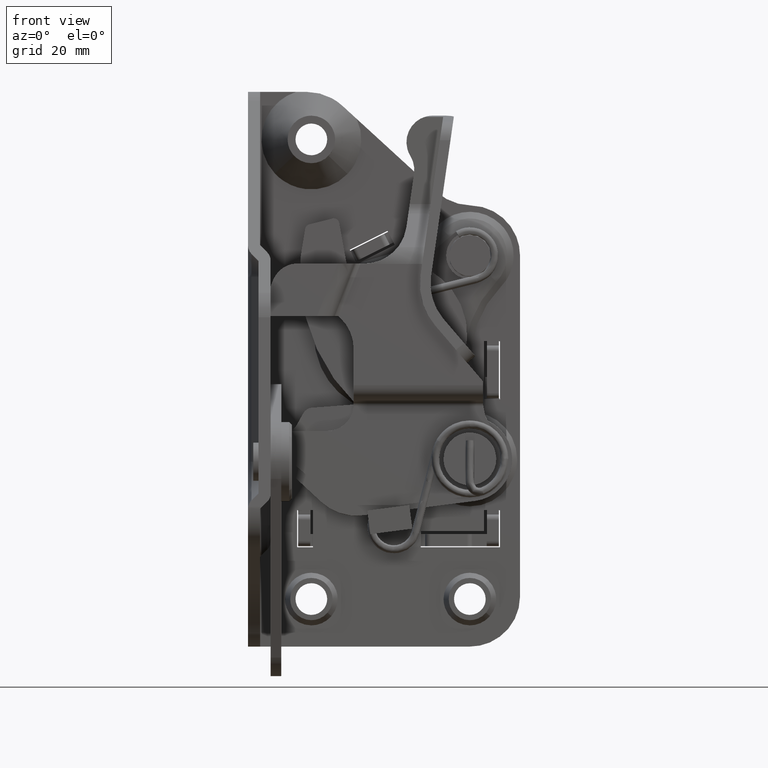
[diagram: clean part render]
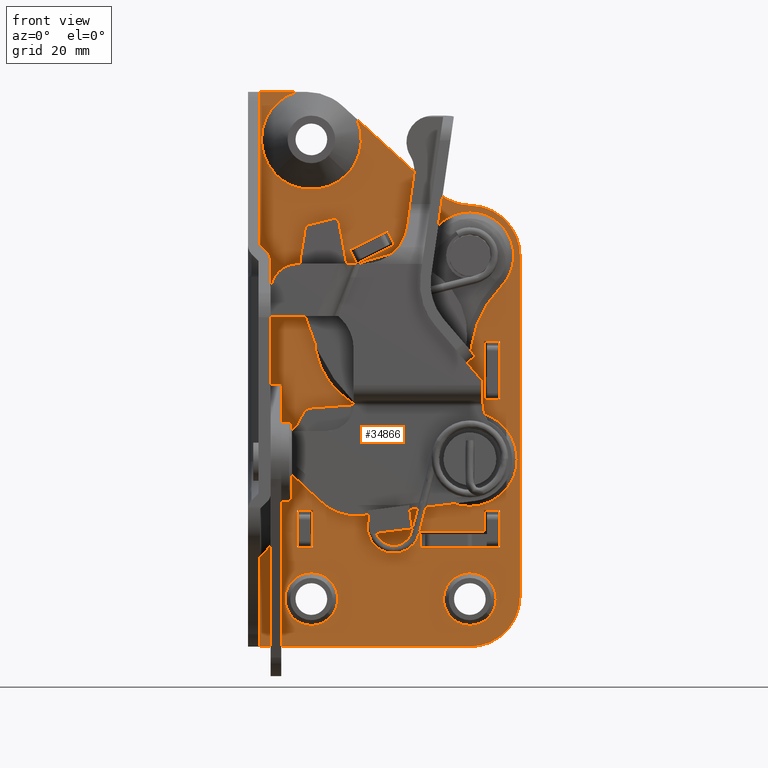
[diagram: same view with one face highlighted and labeled with its STEP entity id]
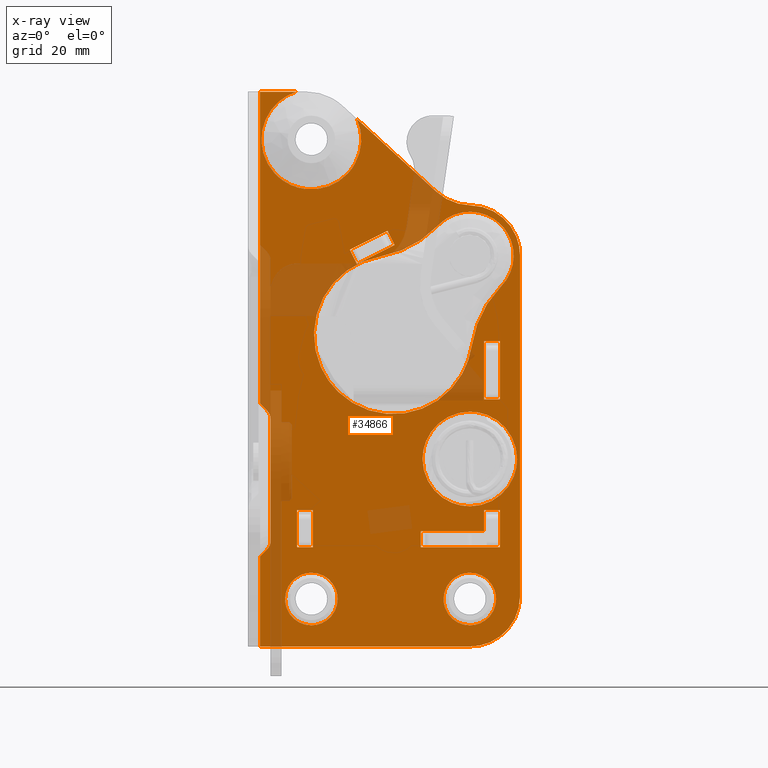
[diagram: x-ray of the same camera — body ghosted, the highlighted face saturated]
A machine part, front view. The second image highlights one B-rep face of the part: STEP entity #34866.
The next image is the same camera in x-ray: the body ghosted, the highlighted face saturated — about 15% of this face is hidden behind the body in this view.
In plain terms, the highlighted face is a freeform B-spline surface patch.
Its self-contained STEP definition (entity closure, byte-faithful):
#25996=CARTESIAN_POINT('',(15.429034903423171,32.699999854749322,-22.386551169877979));
#25997=VERTEX_POINT('',#25996);
#26003=CARTESIAN_POINT('',(12.0,32.700000000000003,-21.018504542377659));
#26004=VERTEX_POINT('',#26003);
#26005=CARTESIAN_POINT('',(12.0,32.700000000000003,-21.018504542377659));
#26006=CARTESIAN_POINT('',(12.531868200378380,32.699999977470547,-21.018226501865250));
#26007=CARTESIAN_POINT('',(13.496941514309810,32.699999936590977,-21.174551846275449));
#26008=CARTESIAN_POINT('',(14.641317711000600,32.699999888116402,-21.728556728464500));
#26009=CARTESIAN_POINT('',(15.214714494438910,32.699999863827443,-22.183162072066541));
#26010=CARTESIAN_POINT('',(15.429034903423171,32.699999854749322,-22.386551169877979));
#26011=B_SPLINE_CURVE_WITH_KNOTS('',3,(#26005,#26006,#26007,#26008,#26009,#26010),.UNSPECIFIED.,.F.,.U.,(4,1,1,4),(0.000000033460234,1.595559757880193,2.895643604082581,3.782064153191778),.UNSPECIFIED.);
#26012=EDGE_CURVE('',#26004,#25997,#26011,.T.);
#26014=CARTESIAN_POINT('',(7.018504542377841,32.700000000000003,-25.999998656390400));
#26015=VERTEX_POINT('',#26014);
#26016=CARTESIAN_POINT('',(7.018504542377841,32.700000000000003,-25.999998656390400));
#26017=CARTESIAN_POINT('',(7.018488238826967,32.700000000000003,-25.694341628645510));
#26018=CARTESIAN_POINT('',(7.082424721107380,32.700000000000067,-25.001506832384042));
#26019=CARTESIAN_POINT('',(7.422560476180739,32.699999999999982,-23.904086725285179));
#26020=CARTESIAN_POINT('',(7.994318873139673,32.700000000000053,-22.976261939324498));
#26021=CARTESIAN_POINT('',(8.727020034198741,32.699999999999918,-22.206779831102459));
#26022=CARTESIAN_POINT('',(9.474724150318567,32.700000000000088,-21.666343925716181));
#26023=CARTESIAN_POINT('',(10.594155668960751,32.699999999999903,-21.161776135503569));
#26024=CARTESIAN_POINT('',(11.449764652656640,32.700000000000152,-21.018186359229141));
#26025=CARTESIAN_POINT('',(12.0,32.700000000000003,-21.018504542377659));
#26026=B_SPLINE_CURVE_WITH_KNOTS('',3,(#26016,#26017,#26018,#26019,#26020,#26021,#26022,#26023,#26024,#26025),.UNSPECIFIED.,.F.,.U.,(4,1,1,1,1,1,1,4),(0.000000144386207,0.916982091844515,2.078509201685229,3.423423737743134,4.156969202309650,5.257381164308493,6.174393033261874,7.824963107522581),.UNSPECIFIED.);
#26027=EDGE_CURVE('',#26015,#26004,#26026,.T.);
#26029=CARTESIAN_POINT('',(12.0,32.700000000000003,-30.981495457622341));
#26030=VERTEX_POINT('',#26029);
#26031=CARTESIAN_POINT('',(12.0,32.700000000000003,-30.981495457622341));
#26032=CARTESIAN_POINT('',(11.592443745591300,32.700000000000067,-30.981606309677900));
#26033=CARTESIAN_POINT('',(10.899668974955111,32.699999999999953,-30.895964743958089));
#26034=CARTESIAN_POINT('',(9.913296311072282,32.700000000000152,-30.556659653651440));
#26035=CARTESIAN_POINT('',(9.149426467699504,32.699999999999633,-30.117700919773569));
#26036=CARTESIAN_POINT('',(8.477186896980749,32.700000000000230,-29.551982123733890));
#26037=CARTESIAN_POINT('',(7.809034445144345,32.700000000000387,-28.777771941976511));
#26038=CARTESIAN_POINT('',(7.192406337174747,32.699999999999321,-27.589255538282401));
#26039=CARTESIAN_POINT('',(7.018216567550966,32.700000000000330,-26.550220100280210));
#26040=CARTESIAN_POINT('',(7.018504542377841,32.700000000000003,-25.999998656390400));
#26041=B_SPLINE_CURVE_WITH_KNOTS('',3,(#26031,#26032,#26033,#26034,#26035,#26036,#26037,#26038,#26039,#26040),.UNSPECIFIED.,.F.,.U.,(4,1,1,1,1,1,1,4),(0.000000143924558,1.222643813807443,2.078509603566498,3.117766867627621,3.851392941928405,4.707202872080243,6.174394228759630,7.824964622093184),.UNSPECIFIED.);
#26042=EDGE_CURVE('',#26030,#26015,#26041,.T.);
#26044=CARTESIAN_POINT('',(15.803649283100130,32.700000143431133,-29.216761298365270));
#26045=VERTEX_POINT('',#26044);
#26046=CARTESIAN_POINT('',(15.803649283100130,32.700000143431133,-29.216761298365270));
#26047=CARTESIAN_POINT('',(15.585348074208760,32.700000135199303,-29.474970245520609));
#26048=CARTESIAN_POINT('',(15.112174348798440,32.700000117356353,-29.930891957360561));
#26049=CARTESIAN_POINT('',(14.178225716264910,32.700000082138402,-30.529937292278529));
#26050=CARTESIAN_POINT('',(13.127082348119879,32.700000042500832,-30.900961097796870));
#26051=CARTESIAN_POINT('',(12.338115369381461,32.700000012750031,-30.981524092186390));
#26052=CARTESIAN_POINT('',(12.0,32.700000000000003,-30.981495457622341));
#26053=B_SPLINE_CURVE_WITH_KNOTS('',3,(#26046,#26047,#26048,#26049,#26050,#26051,#26052),.UNSPECIFIED.,.F.,.U.,(4,1,1,1,4),(0.000000044486663,1.014366487465255,1.961116253166192,3.313599214421998,4.327964746575330),.UNSPECIFIED.);
#26054=EDGE_CURVE('',#26045,#26030,#26053,.T.);
#26090=CARTESIAN_POINT('',(16.981495457622160,32.700000000000003,-26.000001343609540));
#26091=VERTEX_POINT('',#26090);
#26092=CARTESIAN_POINT('',(16.981495457622160,32.700000000000003,-26.000001343609540));
#26093=CARTESIAN_POINT('',(16.981634943578140,32.700000019491540,-26.437140950218989));
#26094=CARTESIAN_POINT('',(16.884953551952329,32.700000051972417,-27.165599492583329));
#26095=CARTESIAN_POINT('',(16.482601921043280,32.700000100967642,-28.264421708479642));
#26096=CARTESIAN_POINT('',(16.086033134646382,32.700000128552098,-28.883066385325719));
#26097=CARTESIAN_POINT('',(15.803649283100130,32.700000143431133,-29.216761298365270));
#26098=B_SPLINE_CURVE_WITH_KNOTS('',3,(#26092,#26093,#26094,#26095,#26096,#26097),.UNSPECIFIED.,.F.,.U.,(4,1,1,4),(0.000000028833962,1.311383558238460,2.185616231079242,3.496999760524615),.UNSPECIFIED.);
#26099=EDGE_CURVE('',#26091,#26045,#26098,.T.);
#26101=CARTESIAN_POINT('',(15.429034903423171,32.699999854749322,-22.386551169877979));
#26102=CARTESIAN_POINT('',(15.857135849316199,32.699999871050977,-22.792091786495419));
#26103=CARTESIAN_POINT('',(16.350597712833409,32.699999898081280,-23.464535872119342));
#26104=CARTESIAN_POINT('',(16.860166133028191,32.699999948375130,-24.715710873949551));
#26105=CARTESIAN_POINT('',(16.981802170695669,32.699999978837383,-25.473532541181470));
#26106=CARTESIAN_POINT('',(16.981495457622160,32.700000000000003,-26.000001343609540));
#26107=B_SPLINE_CURVE_WITH_KNOTS('',3,(#26101,#26102,#26103,#26104,#26105,#26106),.UNSPECIFIED.,.F.,.U.,(4,1,1,4),(0.000000041198786,1.768788659043473,2.463628968249215,4.042900889504093),.UNSPECIFIED.);
#26108=EDGE_CURVE('',#25997,#26091,#26107,.T.);
#26203=CARTESIAN_POINT('',(45.429034903423172,32.699999854749322,-22.386551169877979));
#26204=VERTEX_POINT('',#26203);
#26210=CARTESIAN_POINT('',(42.0,32.700000000000003,-21.018504542377659));
#26211=VERTEX_POINT('',#26210);
#26212=CARTESIAN_POINT('',(42.0,32.700000000000003,-21.018504542377659));
#26213=CARTESIAN_POINT('',(42.393969026391517,32.699999983311898,-21.018420827854928));
#26214=CARTESIAN_POINT('',(43.201563784377967,32.699999949102818,-21.114779412106920));
#26215=CARTESIAN_POINT('',(44.389801199788579,32.699999898770372,-21.564460941101800));
#26216=CARTESIAN_POINT('',(45.100493498773467,32.699999868665977,-22.074561326348849));
#26217=CARTESIAN_POINT('',(45.429034903423172,32.699999854749322,-22.386551169877979));
#26218=B_SPLINE_CURVE_WITH_KNOTS('',3,(#26212,#26213,#26214,#26215,#26216,#26217),.UNSPECIFIED.,.F.,.U.,(4,1,1,4),(0.000000033461454,1.181897523065669,2.422875581161471,3.782064153191772),.UNSPECIFIED.);
#26219=EDGE_CURVE('',#26211,#26204,#26218,.T.);
#26221=CARTESIAN_POINT('',(37.018504542377840,32.700000000000003,-25.999998656390410));
#26222=VERTEX_POINT('',#26221);
#26223=CARTESIAN_POINT('',(37.018504542377840,32.700000000000003,-25.999998656390410));
#26224=CARTESIAN_POINT('',(37.018476213409102,32.699999999999932,-25.694338489091489));
#26225=CARTESIAN_POINT('',(37.074937467437081,32.700000000000088,-25.083025790382170));
#26226=CARTESIAN_POINT('',(37.314835661557112,32.699999999999847,-24.236418965762319));
#26227=CARTESIAN_POINT('',(37.766247873295711,32.700000000000571,-23.296647497732621));
#26228=CARTESIAN_POINT('',(38.493576935050093,32.699999999999022,-22.376202572785012));
#26229=CARTESIAN_POINT('',(39.455227351820668,32.700000000001303,-21.672320073652919));
#26230=CARTESIAN_POINT('',(40.614557088953461,32.699999999999022,-21.158383935338250));
#26231=CARTESIAN_POINT('',(41.449757515957138,32.700000000001012,-21.018183295373319));
#26232=CARTESIAN_POINT('',(42.0,32.700000000000003,-21.018504542377659));
#26233=B_SPLINE_CURVE_WITH_KNOTS('',3,(#26223,#26224,#26225,#26226,#26227,#26228,#26229,#26230,#26231,#26232),.UNSPECIFIED.,.F.,.U.,(4,1,1,1,1,1,1,4),(0.000000144403209,0.916982091859441,1.833974683069288,2.628702697766083,4.034713282469124,5.318525424955242,6.174393033264511,7.824963107522503),.UNSPECIFIED.);
#26234=EDGE_CURVE('',#26222,#26211,#26233,.T.);
#26236=CARTESIAN_POINT('',(42.0,32.700000000000003,-30.981495457622341));
#26237=VERTEX_POINT('',#26236);
#26238=CARTESIAN_POINT('',(42.0,32.700000000000003,-30.981495457622341));
#26239=CARTESIAN_POINT('',(41.592446424894661,32.700000000000010,-30.981594856541900));
#26240=CARTESIAN_POINT('',(40.797770427022179,32.700000000000017,-30.883428481427959));
#26241=CARTESIAN_POINT('',(39.665726530846747,32.699999999999953,-30.454802956132529));
#26242=CARTESIAN_POINT('',(38.717691583674863,32.700000000000088,-29.804301538391421));
#26243=CARTESIAN_POINT('',(37.941963822458249,32.699999999999832,-28.958907514227409));
#26244=CARTESIAN_POINT('',(37.420662545201047,32.699999999999690,-28.051695237446559));
#26245=CARTESIAN_POINT('',(37.093122463505892,32.700000000000053,-27.039216258252718));
#26246=CARTESIAN_POINT('',(37.018436500581082,32.700000000000387,-26.366795433644359));
#26247=CARTESIAN_POINT('',(37.018504542377840,32.700000000000003,-25.999998656390410));
#26248=B_SPLINE_CURVE_WITH_KNOTS('',3,(#26238,#26239,#26240,#26241,#26242,#26243,#26244,#26245,#26246,#26247),.UNSPECIFIED.,.F.,.U.,(4,1,1,1,1,1,1,4),(0.000000143929471,1.222643813810981,2.384179565234768,3.606837637507370,4.646042647746825,5.807590104224497,6.724583924890236,7.824964622093123),.UNSPECIFIED.);
#26249=EDGE_CURVE('',#26237,#26222,#26248,.T.);
#26251=CARTESIAN_POINT('',(45.803649283100142,32.700000143431133,-29.216761298365281));
#26252=VERTEX_POINT('',#26251);
#26253=CARTESIAN_POINT('',(45.803649283100142,32.700000143431133,-29.216761298365281));
#26254=CARTESIAN_POINT('',(45.527174750830433,32.700000133005553,-29.543875179315769));
#26255=CARTESIAN_POINT('',(45.040214293423617,32.700000114643082,-29.988076451306899));
#26256=CARTESIAN_POINT('',(44.131072617235610,32.700000080360176,-30.536815473335331));
#26257=CARTESIAN_POINT('',(43.172135904133867,32.700000044199832,-30.890056757297032));
#26258=CARTESIAN_POINT('',(42.383204625788409,32.700000014450232,-30.981555635469959));
#26259=CARTESIAN_POINT('',(42.0,32.700000000000003,-30.981495457622341));
#26260=B_SPLINE_CURVE_WITH_KNOTS('',3,(#26253,#26254,#26255,#26256,#26257,#26258,#26259),.UNSPECIFIED.,.F.,.U.,(4,1,1,1,4),(0.000000044488363,1.284865575487596,1.961116253166174,3.178347949920271,4.327964746575360),.UNSPECIFIED.);
#26261=EDGE_CURVE('',#26252,#26237,#26260,.T.);
#26297=CARTESIAN_POINT('',(46.981495457622167,32.700000000000003,-26.000001343609551));
#26298=VERTEX_POINT('',#26297);
#26299=CARTESIAN_POINT('',(46.981495457622167,32.700000000000003,-26.000001343609551));
#26300=CARTESIAN_POINT('',(46.981894596361357,32.700000025178490,-26.564682709331560));
#26301=CARTESIAN_POINT('',(46.781018837506053,32.700000077138633,-27.730008290981921));
#26302=CARTESIAN_POINT('',(46.192210423541070,32.700000122981109,-28.758123550116409));
#26303=CARTESIAN_POINT('',(45.803649283100142,32.700000143431133,-29.216761298365281));
#26304=B_SPLINE_CURVE_WITH_KNOTS('',3,(#26299,#26300,#26301,#26302,#26303),.UNSPECIFIED.,.F.,.U.,(4,1,4),(0.000000028832948,1.693880946622130,3.496999760524598),.UNSPECIFIED.);
#26305=EDGE_CURVE('',#26298,#26252,#26304,.T.);
#26307=CARTESIAN_POINT('',(45.429034903423172,32.699999854749322,-22.386551169877979));
#26308=CARTESIAN_POINT('',(45.658158651021637,32.699999863488131,-22.603949997329821));
#26309=CARTESIAN_POINT('',(46.116573919183892,32.699999884647582,-23.130338642821819));
#26310=CARTESIAN_POINT('',(46.621066014928147,32.699999921135962,-24.038077437150498));
#26311=CARTESIAN_POINT('',(46.919221518876888,32.699999961064997,-25.031395621273941));
#26312=CARTESIAN_POINT('',(46.981526232639318,32.699999987303457,-25.684151727342151));
#26313=CARTESIAN_POINT('',(46.981495457622167,32.700000000000003,-26.000001343609551));
#26314=B_SPLINE_CURVE_WITH_KNOTS('',3,(#26307,#26308,#26309,#26310,#26311,#26312,#26313),.UNSPECIFIED.,.F.,.U.,(4,1,1,1,4),(0.000000041200703,0.947553584764326,2.084598001305798,3.095347345905858,4.042900889504078),.UNSPECIFIED.);
#26315=EDGE_CURVE('',#26204,#26298,#26314,.T.);
#27202=CARTESIAN_POINT('',(18.834457562540472,32.700000000000010,54.469769056922473));
#27203=VERTEX_POINT('',#27202);
#27209=CARTESIAN_POINT('',(20.641382222506650,32.700000000000003,64.831480083288810));
#27210=VERTEX_POINT('',#27209);
#27211=CARTESIAN_POINT('',(20.641382222506650,32.700000000000003,64.831480083288810));
#27212=CARTESIAN_POINT('',(20.853341715756621,32.699999999999982,64.353528864449274));
#27213=CARTESIAN_POINT('',(21.188074288179120,32.700000000000081,63.389867109257331));
#27214=CARTESIAN_POINT('',(21.443956639134871,32.699999999999847,61.926111623434700));
#27215=CARTESIAN_POINT('',(21.471376132832312,32.700000000000031,60.615714096947222));
#27216=CARTESIAN_POINT('',(21.333219980892061,32.700000000000067,59.343183419953121));
#27217=CARTESIAN_POINT('',(20.963864023847059,32.700000000000060,57.814337333218432));
#27218=CARTESIAN_POINT('',(20.169770470909999,32.699999999999761,56.086471418203082));
#27219=CARTESIAN_POINT('',(19.296036095837810,32.700000000000273,54.952748261399847));
#27220=CARTESIAN_POINT('',(18.834457562540472,32.700000000000010,54.469769056922473));
#27221=B_SPLINE_CURVE_WITH_KNOTS('',3,(#27211,#27212,#27213,#27214,#27215,#27216,#27217,#27218,#27219,#27220),.UNSPECIFIED.,.F.,.U.,(4,1,1,1,1,1,1,4),(0.000000062585027,1.568525287780609,3.049936762960364,4.444204773696458,5.489916337419253,6.884118895823088,9.149815144178286,11.154047618153900),.UNSPECIFIED.);
#27222=EDGE_CURVE('',#27210,#27203,#27221,.T.);
#27268=CARTESIAN_POINT('',(9.109718639284489,32.700000000000003,70.0));
#27269=VERTEX_POINT('',#27268);
#27283=CARTESIAN_POINT('',(5.089579544775117,32.700000000000010,54.550208105984240));
#27284=VERTEX_POINT('',#27283);
#27285=CARTESIAN_POINT('',(5.089579544775117,32.700000000000010,54.550208105984240));
#27286=CARTESIAN_POINT('',(4.548976454937859,32.700000000000067,55.129107076215057));
#27287=CARTESIAN_POINT('',(3.746160756512051,32.699999999999861,56.241845526901962));
#27288=CARTESIAN_POINT('',(3.063905106337593,32.700000000000102,57.815129090466208));
#27289=CARTESIAN_POINT('',(2.688866451712741,32.699999999999982,59.203137922133983));
#27290=CARTESIAN_POINT('',(2.500930734279940,32.699999999999960,60.681413977813527));
#27291=CARTESIAN_POINT('',(2.603308777257159,32.700000000000109,62.568859347880867));
#27292=CARTESIAN_POINT('',(3.115702948588299,32.699999999999953,64.418322213607098));
#27293=CARTESIAN_POINT('',(3.876404320220501,32.699999999999953,65.898898029195081));
#27294=CARTESIAN_POINT('',(4.812562616874296,32.700000000000053,67.210824350313203));
#27295=CARTESIAN_POINT('',(5.960885799509279,32.700000000000102,68.351542299680816));
#27296=CARTESIAN_POINT('',(7.493038046563590,32.699999999999832,69.367709033761201));
#27297=CARTESIAN_POINT('',(8.544113207503402,32.700000000000223,69.818424082408669));
#27298=CARTESIAN_POINT('',(9.109718639284489,32.700000000000003,70.0));
#27299=B_SPLINE_CURVE_WITH_KNOTS('',3,(#27285,#27286,#27287,#27288,#27289,#27290,#27291,#27292,#27293,#27294,#27295,#27296,#27297,#27298),.UNSPECIFIED.,.F.,.U.,(4,1,1,1,1,1,1,1,1,1,1,4),(0.000000153265582,2.376168188560691,4.084041504481082,5.123625392330649,6.682990794329134,8.539408944313141,10.766981063907849,12.400623455957570,13.514466735701010,15.593625098534790,17.227268677709699,19.009369688678611),.UNSPECIFIED.);
#27300=EDGE_CURVE('',#27284,#27269,#27299,.T.);
#27330=CARTESIAN_POINT('',(8.133839481310531,32.700000000000010,52.374078067370021));
#27331=VERTEX_POINT('',#27330);
#27332=CARTESIAN_POINT('',(8.133839481310531,32.700000000000010,52.374078067370021));
#27333=CARTESIAN_POINT('',(7.739966236824706,32.700000000000017,52.550614050931692));
#27334=CARTESIAN_POINT('',(6.629328436645914,32.699999999999982,53.142726211418712));
#27335=CARTESIAN_POINT('',(5.651649011331941,32.700000000000053,53.947596582619397));
#27336=CARTESIAN_POINT('',(5.089579544775117,32.700000000000010,54.550208105984240));
#27337=B_SPLINE_CURVE_WITH_KNOTS('',3,(#27332,#27333,#27334,#27335,#27336),.UNSPECIFIED.,.F.,.U.,(4,1,4),(5.661148E-009,1.294898883618504,3.766966699953353),.UNSPECIFIED.);
#27338=EDGE_CURVE('',#27331,#27284,#27337,.T.);
#27340=CARTESIAN_POINT('',(18.834457562540472,32.700000000000010,54.469769056922473));
#27341=CARTESIAN_POINT('',(18.186532115926742,32.700000000000031,53.791094279888462));
#27342=CARTESIAN_POINT('',(16.928314639165560,32.700000000000067,52.816869467139988));
#27343=CARTESIAN_POINT('',(14.974870208186950,32.699999999999953,51.969119038247392));
#27344=CARTESIAN_POINT('',(13.078384456651630,32.699999999999967,51.540535058431047));
#27345=CARTESIAN_POINT('',(10.761822591758390,32.699999999999953,51.504032175172448));
#27346=CARTESIAN_POINT('',(9.045091098554728,32.700000000000259,51.965040153092083));
#27347=CARTESIAN_POINT('',(8.133839481310531,32.700000000000010,52.374078067370021));
#27348=B_SPLINE_CURVE_WITH_KNOTS('',3,(#27340,#27341,#27342,#27343,#27344,#27345,#27346,#27347),.UNSPECIFIED.,.F.,.U.,(4,1,1,1,1,4),(0.000000067034126,2.814776067792762,4.721561272298567,6.355944158796683,8.625926184218493,11.622301811538890),.UNSPECIFIED.);
#27349=EDGE_CURVE('',#27203,#27331,#27348,.T.);
#27396=CARTESIAN_POINT('',(36.058206488926892,32.699999748791569,7.197110225828737));
#27397=VERTEX_POINT('',#27396);
#27403=CARTESIAN_POINT('',(33.047000000000239,32.700000000000010,0.499997975926641));
#27404=VERTEX_POINT('',#27403);
#27405=CARTESIAN_POINT('',(36.058206488926892,32.699999748791569,7.197110225828737));
#27406=CARTESIAN_POINT('',(35.615992229977941,32.699999763504387,6.804872216278876));
#27407=CARTESIAN_POINT('',(34.890375997638877,32.699999792960639,6.019582159418067));
#27408=CARTESIAN_POINT('',(33.954902542284650,32.699999847964008,4.553211945340067));
#27409=CARTESIAN_POINT('',(33.240811648492439,32.699999915750361,2.746062050261071));
#27410=CARTESIAN_POINT('',(33.046744984875872,32.699999970436039,1.288161053396831));
#27411=CARTESIAN_POINT('',(33.047000000000239,32.700000000000010,0.499997975926641));
#27412=B_SPLINE_CURVE_WITH_KNOTS('',3,(#27405,#27406,#27407,#27408,#27409,#27410,#27411),.UNSPECIFIED.,.F.,.U.,(4,1,1,1,4),(0.000000024570883,1.773311966623349,3.191980083088919,5.201709854397988,7.566133327692387),.UNSPECIFIED.);
#27413=EDGE_CURVE('',#27397,#27404,#27412,.T.);
#27415=CARTESIAN_POINT('',(35.302888646664869,32.700000251208373,-5.441794511416535));
#27416=VERTEX_POINT('',#27415);
#27417=CARTESIAN_POINT('',(33.047000000000239,32.700000000000010,0.499997975926641));
#27418=CARTESIAN_POINT('',(33.046844371734707,32.700000028614497,-0.176817398827052));
#27419=CARTESIAN_POINT('',(33.158849387920881,32.700000070101787,-1.158105209342500));
#27420=CARTESIAN_POINT('',(33.595564312357389,32.700000134851372,-2.689621494895447));
#27421=CARTESIAN_POINT('',(34.220719763585670,32.700000192345271,-4.049514985403430));
#27422=CARTESIAN_POINT('',(34.921049335599108,32.700000233016667,-5.011508459910903));
#27423=CARTESIAN_POINT('',(35.302888646664869,32.700000251208373,-5.441794511416535));
#27424=B_SPLINE_CURVE_WITH_KNOTS('',3,(#27417,#27418,#27419,#27420,#27421,#27422,#27423),.UNSPECIFIED.,.F.,.U.,(4,1,1,1,4),(0.000000024523099,2.030405168076943,2.944101436289300,4.771450829506225,6.497295911353312),.UNSPECIFIED.);
#27425=EDGE_CURVE('',#27404,#27416,#27424,.T.);
#27470=CARTESIAN_POINT('',(42.0,32.700000000000003,-8.452999999999999));
#27471=VERTEX_POINT('',#27470);
#27472=CARTESIAN_POINT('',(35.302888646664869,32.700000251208373,-5.441794511416535));
#27473=CARTESIAN_POINT('',(35.747390142021160,32.700000234535231,-5.943017666149027));
#27474=CARTESIAN_POINT('',(36.454915660699797,32.700000207995743,-6.579530748851629));
#27475=CARTESIAN_POINT('',(37.746514436870392,32.700000159548097,-7.415475730877303));
#27476=CARTESIAN_POINT('',(38.970818047403611,32.700000113624498,-7.975712382550782));
#27477=CARTESIAN_POINT('',(40.502561085291461,32.700000056168903,-8.368202781743330));
#27478=CARTESIAN_POINT('',(41.487712133463603,32.700000019215672,-8.453045798067285));
#27479=CARTESIAN_POINT('',(42.0,32.700000000000003,-8.452999999999999));
#27480=B_SPLINE_CURVE_WITH_KNOTS('',3,(#27472,#27473,#27474,#27475,#27476,#27477,#27478,#27479),.UNSPECIFIED.,.F.,.U.,(4,1,1,1,1,4),(0.000000024548805,2.009754365584564,2.837300531442950,4.610604311046926,6.029266088381995,7.566131940481127),.UNSPECIFIED.);
#27481=EDGE_CURVE('',#27416,#27471,#27480,.T.);
#27483=CARTESIAN_POINT('',(50.952999999999768,32.700000000000003,0.500002024073455));
#27484=VERTEX_POINT('',#27483);
#27485=CARTESIAN_POINT('',(42.0,32.700000000000003,-8.452999999999999));
#27486=CARTESIAN_POINT('',(42.585966115231841,32.700000000000017,-8.453046662311648));
#27487=CARTESIAN_POINT('',(43.941053777967070,32.699999999999967,-8.319633021511994));
#27488=CARTESIAN_POINT('',(45.830673221971971,32.700000000000088,-7.682614201586181));
#27489=CARTESIAN_POINT('',(47.360855453891659,32.699999999999882,-6.726462284597389));
#27490=CARTESIAN_POINT('',(48.618926778951213,32.700000000000088,-5.600235763934095));
#27491=CARTESIAN_POINT('',(49.593713986918601,32.700000000000088,-4.351214339925974));
#27492=CARTESIAN_POINT('',(50.386999007808207,32.699999999999882,-2.775134525013606));
#27493=CARTESIAN_POINT('',(50.848215182927397,32.699999999999861,-1.184650704203035));
#27494=CARTESIAN_POINT('',(50.953047701012807,32.700000000000117,-0.049342070558971));
#27495=CARTESIAN_POINT('',(50.952999999999768,32.700000000000003,0.500002024073455));
#27496=B_SPLINE_CURVE_WITH_KNOTS('',3,(#27485,#27486,#27487,#27488,#27489,#27490,#27491,#27492,#27493,#27494,#27495),.UNSPECIFIED.,.F.,.U.,(4,1,1,1,1,1,1,1,4),(0.000000090985585,1.757923390815273,4.065212839789435,5.933037064446117,7.141558625443031,9.119233886338012,10.657443022741621,12.415394149435761,14.063428896091800),.UNSPECIFIED.);
#27497=EDGE_CURVE('',#27471,#27484,#27496,.T.);
#27499=CARTESIAN_POINT('',(42.0,32.700000000000003,9.452999999999999));
#27500=VERTEX_POINT('',#27499);
#27501=CARTESIAN_POINT('',(50.952999999999768,32.700000000000003,0.500002024073455));
#27502=CARTESIAN_POINT('',(50.953085489167577,32.700000000000003,1.085980076513663));
#27503=CARTESIAN_POINT('',(50.859157357324861,32.699999999999910,2.038149460230047));
#27504=CARTESIAN_POINT('',(50.513144636858570,32.700000000000252,3.350934427029857));
#27505=CARTESIAN_POINT('',(50.042620177987793,32.699999999999662,4.506875149208625));
#27506=CARTESIAN_POINT('',(49.238882138702323,32.700000000000131,5.866981529395855));
#27507=CARTESIAN_POINT('',(48.107560936258857,32.699999999999953,7.130680494838535));
#27508=CARTESIAN_POINT('',(46.778859348606687,32.700000000000017,8.115946581819324));
#27509=CARTESIAN_POINT('',(45.344630368656247,32.699999999999939,8.860190915598560));
#27510=CARTESIAN_POINT('',(43.757918388707928,32.700000000000223,9.341490790975378));
#27511=CARTESIAN_POINT('',(42.549339768645623,32.699999999999633,9.453041325341690));
#27512=CARTESIAN_POINT('',(42.0,32.700000000000003,9.452999999999999));
#27513=B_SPLINE_CURVE_WITH_KNOTS('',3,(#27501,#27502,#27503,#27504,#27505,#27506,#27507,#27508,#27509,#27510,#27511,#27512),.UNSPECIFIED.,.F.,.U.,(4,1,1,1,1,1,1,1,1,4),(0.000000091710577,1.757923106503581,2.856632406260735,4.065212180643712,5.493554316821454,7.581045418937959,9.119232406710431,10.437698670818300,12.415392134655320,14.063426614474890),.UNSPECIFIED.);
#27514=EDGE_CURVE('',#27484,#27500,#27513,.T.);
#27516=CARTESIAN_POINT('',(42.0,32.700000000000003,9.452999999999999));
#27517=CARTESIAN_POINT('',(41.424714796039162,32.699999975677940,9.453072861733412));
#27518=CARTESIAN_POINT('',(40.308037085530160,32.699999928466802,9.344985614449367));
#27519=CARTESIAN_POINT('',(38.709471338718082,32.699999860882301,8.879356914690359));
#27520=CARTESIAN_POINT('',(37.281971147594462,32.699999800530293,8.163291596493940));
#27521=CARTESIAN_POINT('',(36.437884101173118,32.699999764843611,7.534010830406071));
#27522=CARTESIAN_POINT('',(36.058206488926892,32.699999748791569,7.197110225828737));
#27523=B_SPLINE_CURVE_WITH_KNOTS('',3,(#27516,#27517,#27518,#27519,#27520,#27521,#27522),.UNSPECIFIED.,.F.,.U.,(4,1,1,1,4),(0.000000024509252,1.725845498733698,3.350152682939688,4.974494180742382,6.497297388526082),.UNSPECIFIED.);
#27524=EDGE_CURVE('',#27500,#27397,#27523,.T.);
#29545=CARTESIAN_POINT('',(12.299999999999701,32.700000000000003,-9.200000000000101));
#29546=VERTEX_POINT('',#29545);
#29554=CARTESIAN_POINT('',(9.299999999999780,32.700000000000003,-9.200000000000101));
#29555=VERTEX_POINT('',#29554);
#29556=CARTESIAN_POINT('',(12.299999999999701,32.700000000000003,-9.200000000000101));
#29557=CARTESIAN_POINT('',(9.299999999999780,32.700000000000003,-9.200000000000101));
#29558=QUASI_UNIFORM_CURVE('',1,(#29556,#29557),.UNSPECIFIED.,.F.,.U.);
#29559=EDGE_CURVE('',#29546,#29555,#29558,.T.);
#29582=CARTESIAN_POINT('',(9.299999999999780,32.700000000000003,-16.199999999999999));
#29583=VERTEX_POINT('',#29582);
#29584=CARTESIAN_POINT('',(9.299999999999780,32.700000000000003,-9.200000000000101));
#29585=CARTESIAN_POINT('',(9.299999999999780,32.700000000000003,-16.199999999999999));
#29586=QUASI_UNIFORM_CURVE('',1,(#29584,#29585),.UNSPECIFIED.,.F.,.U.);
#29587=EDGE_CURVE('',#29555,#29583,#29586,.T.);
#29610=CARTESIAN_POINT('',(12.299999999999701,32.700000000000003,-16.199999999999999));
#29611=VERTEX_POINT('',#29610);
#29612=CARTESIAN_POINT('',(9.299999999999780,32.700000000000003,-16.199999999999999));
#29613=CARTESIAN_POINT('',(12.299999999999701,32.700000000000003,-16.199999999999999));
#29614=QUASI_UNIFORM_CURVE('',1,(#29612,#29613),.UNSPECIFIED.,.F.,.U.);
#29615=EDGE_CURVE('',#29583,#29611,#29614,.T.);
#29638=CARTESIAN_POINT('',(12.299999999999701,32.700000000000003,-16.199999999999999));
#29639=CARTESIAN_POINT('',(12.299999999999701,32.700000000000003,-9.200000000000101));
#29640=QUASI_UNIFORM_CURVE('',1,(#29638,#29639),.UNSPECIFIED.,.F.,.U.);
#29641=EDGE_CURVE('',#29611,#29546,#29640,.T.);
#29657=CARTESIAN_POINT('',(32.700000000000003,32.700000000000003,-13.199999999999999));
#29658=VERTEX_POINT('',#29657);
#29666=CARTESIAN_POINT('',(32.700000000000003,32.700000000000003,-16.199999999999999));
#29667=VERTEX_POINT('',#29666);
#29668=CARTESIAN_POINT('',(32.700000000000003,32.700000000000003,-13.199999999999999));
#29669=CARTESIAN_POINT('',(32.700000000000003,32.700000000000003,-16.199999999999999));
#29670=QUASI_UNIFORM_CURVE('',1,(#29668,#29669),.UNSPECIFIED.,.F.,.U.);
#29671=EDGE_CURVE('',#29658,#29667,#29670,.T.);
#29694=CARTESIAN_POINT('',(47.700000000000003,32.700000000000003,-16.199999999999999));
#29695=VERTEX_POINT('',#29694);
#29696=CARTESIAN_POINT('',(32.700000000000003,32.700000000000003,-16.199999999999999));
#29697=CARTESIAN_POINT('',(47.700000000000003,32.700000000000003,-16.199999999999999));
#29698=QUASI_UNIFORM_CURVE('',1,(#29696,#29697),.UNSPECIFIED.,.F.,.U.);
#29699=EDGE_CURVE('',#29667,#29695,#29698,.T.);
#29722=CARTESIAN_POINT('',(47.700000000000003,32.700000000000003,-9.200000000000101));
#29723=VERTEX_POINT('',#29722);
#29724=CARTESIAN_POINT('',(47.700000000000003,32.700000000000003,-16.199999999999999));
#29725=CARTESIAN_POINT('',(47.700000000000003,32.700000000000003,-9.200000000000101));
#29726=QUASI_UNIFORM_CURVE('',1,(#29724,#29725),.UNSPECIFIED.,.F.,.U.);
#29727=EDGE_CURVE('',#29695,#29723,#29726,.T.);
#29750=CARTESIAN_POINT('',(44.700000000000003,32.700000000000003,-9.200000000000101));
#29751=VERTEX_POINT('',#29750);
#29752=CARTESIAN_POINT('',(47.700000000000003,32.700000000000003,-9.200000000000101));
#29753=CARTESIAN_POINT('',(44.700000000000003,32.700000000000003,-9.200000000000101));
#29754=QUASI_UNIFORM_CURVE('',1,(#29752,#29753),.UNSPECIFIED.,.F.,.U.);
#29755=EDGE_CURVE('',#29723,#29751,#29754,.T.);
#29778=CARTESIAN_POINT('',(44.700000000000003,32.700000000000003,-13.199999999999999));
#29779=VERTEX_POINT('',#29778);
#29780=CARTESIAN_POINT('',(44.700000000000003,32.700000000000003,-9.200000000000101));
#29781=CARTESIAN_POINT('',(44.700000000000003,32.700000000000003,-13.199999999999999));
#29782=QUASI_UNIFORM_CURVE('',1,(#29780,#29781),.UNSPECIFIED.,.F.,.U.);
#29783=EDGE_CURVE('',#29751,#29779,#29782,.T.);
#29806=CARTESIAN_POINT('',(44.700000000000003,32.700000000000003,-13.199999999999999));
#29807=CARTESIAN_POINT('',(32.700000000000003,32.700000000000003,-13.199999999999999));
#29808=QUASI_UNIFORM_CURVE('',1,(#29806,#29807),.UNSPECIFIED.,.F.,.U.);
#29809=EDGE_CURVE('',#29779,#29658,#29808,.T.);
#29825=CARTESIAN_POINT('',(47.700000000000003,32.700000000000003,22.800000000000001));
#29826=VERTEX_POINT('',#29825);
#29834=CARTESIAN_POINT('',(44.700000000000003,32.700000000000003,22.800000000000001));
#29835=VERTEX_POINT('',#29834);
#29836=CARTESIAN_POINT('',(47.700000000000003,32.700000000000003,22.800000000000001));
#29837=CARTESIAN_POINT('',(44.700000000000003,32.700000000000003,22.800000000000001));
#29838=QUASI_UNIFORM_CURVE('',1,(#29836,#29837),.UNSPECIFIED.,.F.,.U.);
#29839=EDGE_CURVE('',#29826,#29835,#29838,.T.);
#29862=CARTESIAN_POINT('',(44.700000000000003,32.700000000000003,11.800000000000001));
#29863=VERTEX_POINT('',#29862);
#29864=CARTESIAN_POINT('',(44.700000000000003,32.700000000000003,22.800000000000001));
#29865=CARTESIAN_POINT('',(44.700000000000003,32.700000000000003,11.800000000000001));
#29866=QUASI_UNIFORM_CURVE('',1,(#29864,#29865),.UNSPECIFIED.,.F.,.U.);
#29867=EDGE_CURVE('',#29835,#29863,#29866,.T.);
#29890=CARTESIAN_POINT('',(47.700000000000003,32.700000000000003,11.800000000000001));
#29891=VERTEX_POINT('',#29890);
#29892=CARTESIAN_POINT('',(44.700000000000003,32.700000000000003,11.800000000000001));
#29893=CARTESIAN_POINT('',(47.700000000000003,32.700000000000003,11.800000000000001));
#29894=QUASI_UNIFORM_CURVE('',1,(#29892,#29893),.UNSPECIFIED.,.F.,.U.);
#29895=EDGE_CURVE('',#29863,#29891,#29894,.T.);
#29918=CARTESIAN_POINT('',(47.700000000000003,32.700000000000003,11.800000000000001));
#29919=CARTESIAN_POINT('',(47.700000000000003,32.700000000000003,22.800000000000001));
#29920=QUASI_UNIFORM_CURVE('',1,(#29918,#29919),.UNSPECIFIED.,.F.,.U.);
#29921=EDGE_CURVE('',#29891,#29826,#29920,.T.);
#29937=CARTESIAN_POINT('',(19.256999999999699,32.700000000000003,40.101999999999997));
#29938=VERTEX_POINT('',#29937);
#29946=CARTESIAN_POINT('',(20.598595355222201,32.700000000000003,37.418809289555050));
#29947=VERTEX_POINT('',#29946);
#29948=CARTESIAN_POINT('',(19.256999999999699,32.700000000000003,40.101999999999997));
#29949=CARTESIAN_POINT('',(20.598595355222201,32.700000000000003,37.418809289555050));
#29950=QUASI_UNIFORM_CURVE('',1,(#29948,#29949),.UNSPECIFIED.,.F.,.U.);
#29951=EDGE_CURVE('',#29938,#29947,#29950,.T.);
#29983=CARTESIAN_POINT('',(27.754000000000001,32.700000000000003,40.996000000000002));
#29984=VERTEX_POINT('',#29983);
#29985=CARTESIAN_POINT('',(20.598595355222201,32.700000000000003,37.418809289555050));
#29986=CARTESIAN_POINT('',(27.754000000000001,32.700000000000003,40.996000000000002));
#29987=QUASI_UNIFORM_CURVE('',1,(#29985,#29986),.UNSPECIFIED.,.F.,.U.);
#29988=EDGE_CURVE('',#29947,#29984,#29987,.T.);
#30033=CARTESIAN_POINT('',(26.411999999999999,32.700000000000003,43.679000000000002));
#30034=VERTEX_POINT('',#30033);
#30035=CARTESIAN_POINT('',(27.754000000000001,32.700000000000003,40.996000000000002));
#30036=CARTESIAN_POINT('',(26.411999999999999,32.700000000000003,43.679000000000002));
#30037=QUASI_UNIFORM_CURVE('',1,(#30035,#30036),.UNSPECIFIED.,.F.,.U.);
#30038=EDGE_CURVE('',#29984,#30034,#30037,.T.);
#30061=CARTESIAN_POINT('',(26.411999999999999,32.700000000000003,43.679000000000002));
#30062=CARTESIAN_POINT('',(19.256999999999699,32.700000000000003,40.101999999999997));
#30063=QUASI_UNIFORM_CURVE('',1,(#30061,#30062),.UNSPECIFIED.,.F.,.U.);
#30064=EDGE_CURVE('',#30034,#29938,#30063,.T.);
#30095=CARTESIAN_POINT('',(31.034167986745551,32.700000000000003,55.311033877805997));
#30096=VERTEX_POINT('',#30095);
#30097=CARTESIAN_POINT('',(31.034167986745551,32.700000000000003,55.311033877805997));
#30098=CARTESIAN_POINT('',(20.641382222506650,32.700000000000003,64.831480083288810));
#30099=QUASI_UNIFORM_CURVE('',1,(#30097,#30098),.UNSPECIFIED.,.F.,.U.);
#30100=EDGE_CURVE('',#30096,#27210,#30099,.T.);
#31191=CARTESIAN_POINT('',(3.626345596728865,32.700000000000003,-16.626345596729202));
#31192=VERTEX_POINT('',#31191);
#31198=CARTESIAN_POINT('',(4.299999999999884,32.700000000000003,-15.0));
#31199=VERTEX_POINT('',#31198);
#31200=CARTESIAN_POINT('',(3.626345596728865,32.700000000000003,-16.626345596729202));
#31201=CARTESIAN_POINT('',(3.772764965150039,32.699999999999982,-16.480032813930229));
#31202=CARTESIAN_POINT('',(3.991108137219152,32.700000000000053,-16.192834415020851));
#31203=CARTESIAN_POINT('',(4.236347779052665,32.700000000000017,-15.639703012252770));
#31204=CARTESIAN_POINT('',(4.300122707580426,32.699999999999953,-15.244641388244981));
#31205=CARTESIAN_POINT('',(4.299999999999884,32.700000000000003,-15.0));
#31206=B_SPLINE_CURVE_WITH_KNOTS('',3,(#31200,#31201,#31202,#31203,#31204,#31205),.UNSPECIFIED.,.F.,.U.,(4,1,1,4),(0.000000057516609,0.620973283132911,1.072570498753836,1.806461105560835),.UNSPECIFIED.);
#31207=EDGE_CURVE('',#31192,#31199,#31206,.T.);
#31390=CARTESIAN_POINT('',(4.299999999999884,32.700000000000003,8.000000000000119));
#31391=VERTEX_POINT('',#31390);
#31392=CARTESIAN_POINT('',(3.626345596728920,32.700000000000003,9.626345596729150));
#31393=VERTEX_POINT('',#31392);
#31394=CARTESIAN_POINT('',(4.299999999999884,32.700000000000003,8.000000000000119));
#31395=CARTESIAN_POINT('',(4.300251930730413,32.699999999999953,8.282291732221902));
#31396=CARTESIAN_POINT('',(4.187656087366575,32.700000000000138,8.884216071978297));
#31397=CARTESIAN_POINT('',(3.852909374026829,32.699999999999932,9.400416738784170));
#31398=CARTESIAN_POINT('',(3.626345596728920,32.700000000000003,9.626345596729150));
#31399=B_SPLINE_CURVE_WITH_KNOTS('',3,(#31394,#31395,#31396,#31397,#31398),.UNSPECIFIED.,.F.,.U.,(4,1,4),(0.000000057516234,0.846792599063493,1.806461105560663),.UNSPECIFIED.);
#31400=EDGE_CURVE('',#31391,#31393,#31399,.T.);
#32193=CARTESIAN_POINT('',(42.354673795505853,32.700000000000003,21.917053426248799));
#32194=VERTEX_POINT('',#32193);
#32200=CARTESIAN_POINT('',(47.912915754050402,32.700000000000003,33.175274488398749));
#32201=VERTEX_POINT('',#32200);
#32202=CARTESIAN_POINT('',(47.912915754050402,32.700000000000003,33.175274488398749));
#32203=CARTESIAN_POINT('',(46.932477111080708,32.700000000000010,32.180265893666203));
#32204=CARTESIAN_POINT('',(45.389939522544807,32.700000000000017,30.245168239567938));
#32205=CARTESIAN_POINT('',(43.824064119959608,32.700000000000003,27.298925941292580));
#32206=CARTESIAN_POINT('',(42.857841997636868,32.700000000000010,24.600402179964242));
#32207=CARTESIAN_POINT('',(42.483945797791030,32.700000000000017,22.839288368237039));
#32208=CARTESIAN_POINT('',(42.354673795505853,32.700000000000003,21.917053426248799));
#32209=B_SPLINE_CURVE_WITH_KNOTS('',3,(#32202,#32203,#32204,#32205,#32206,#32207,#32208),.UNSPECIFIED.,.F.,.U.,(4,1,1,1,4),(4.853801E-009,4.190649210682320,7.383506754117667,9.977724456011021,12.771483875669761),.UNSPECIFIED.);
#32210=EDGE_CURVE('',#32201,#32194,#32209,.T.);
#32240=CARTESIAN_POINT('',(47.768681818394853,32.700000000000003,44.967605053798437));
#32241=VERTEX_POINT('',#32240);
#32242=CARTESIAN_POINT('',(47.912915754050402,32.700000000000003,33.175274488398749));
#32243=CARTESIAN_POINT('',(48.392439577412560,32.700000000000060,33.661821863563098));
#32244=CARTESIAN_POINT('',(49.041632828091622,32.699999999999932,34.508460996645262));
#32245=CARTESIAN_POINT('',(49.836979395033261,32.700000000000038,36.101198458846760));
#32246=CARTESIAN_POINT('',(50.243753581594227,32.699999999999903,37.596769594128837));
#32247=CARTESIAN_POINT('',(50.337004199934412,32.700000000000053,39.273267544599392));
#32248=CARTESIAN_POINT('',(50.176611903502042,32.700000000000159,40.635935694141018));
#32249=CARTESIAN_POINT('',(49.725936974815284,32.700000000000173,42.181364365049149));
#32250=CARTESIAN_POINT('',(48.961074588068890,32.699999999999321,43.645612955554611));
#32251=CARTESIAN_POINT('',(48.161628212887493,32.700000000000692,44.587819170749853));
#32252=CARTESIAN_POINT('',(47.768681818394853,32.700000000000003,44.967605053798437));
#32253=B_SPLINE_CURVE_WITH_KNOTS('',3,(#32242,#32243,#32244,#32245,#32246,#32247,#32248,#32249,#32250,#32251,#32252),.UNSPECIFIED.,.F.,.U.,(4,1,1,1,1,1,1,1,4),(0.000000106369475,2.049357034345571,3.176530552366611,5.328406879009895,6.660437472433714,8.197474632166543,9.427121976638915,11.476523914017120,13.115998998010650),.UNSPECIFIED.);
#32254=EDGE_CURVE('',#32201,#32241,#32253,.T.);
#32256=CARTESIAN_POINT('',(35.978239850846798,32.700000000000003,44.712127861495603));
#32257=VERTEX_POINT('',#32256);
#32258=CARTESIAN_POINT('',(47.768681818394853,32.700000000000003,44.967605053798437));
#32259=CARTESIAN_POINT('',(47.375798045197691,32.699999999999967,45.347457196584742));
#32260=CARTESIAN_POINT('',(46.407033665472120,32.700000000000017,46.114495650257460));
#32261=CARTESIAN_POINT('',(44.917718513599453,32.700000000000053,46.829314948337981));
#32262=CARTESIAN_POINT('',(43.291550995421851,32.699999999999953,47.244311529047032));
#32263=CARTESIAN_POINT('',(41.612915242525723,32.700000000000067,47.363709891421422));
#32264=CARTESIAN_POINT('',(40.015344354652491,32.700000000000003,47.110075306657407));
#32265=CARTESIAN_POINT('',(38.661639144775151,32.699999999999982,46.626969765927932));
#32266=CARTESIAN_POINT('',(37.354209856167110,32.700000000000053,45.949005152221552));
#32267=CARTESIAN_POINT('',(36.471731020525127,32.700000000000003,45.232685953800633));
#32268=CARTESIAN_POINT('',(35.978239850846798,32.700000000000003,44.712127861495603));
#32269=B_SPLINE_CURVE_WITH_KNOTS('',3,(#32258,#32259,#32260,#32261,#32262,#32263,#32264,#32265,#32266,#32267,#32268),.UNSPECIFIED.,.F.,.U.,(4,1,1,1,1,1,1,1,4),(0.000000106423578,1.639473679086210,3.688874765783531,4.918521996156542,6.660435232897004,8.709821993014252,9.734526343108501,10.964169937782140,13.115994587733191),.UNSPECIFIED.);
#32270=EDGE_CURVE('',#32241,#32257,#32269,.T.);
#32304=CARTESIAN_POINT('',(24.914846184800400,32.700000000000003,38.775553449930747));
#32305=VERTEX_POINT('',#32304);
#32311=CARTESIAN_POINT('',(17.074669887985571,32.700000000000003,13.215173063255710));
#32312=VERTEX_POINT('',#32311);
#32313=CARTESIAN_POINT('',(24.914846184800400,32.700000000000003,38.775553449930747));
#32314=CARTESIAN_POINT('',(23.729709654400128,32.700000000000010,38.568455999939168));
#32315=CARTESIAN_POINT('',(21.741292787753519,32.700000000000003,37.967042962077912));
#32316=CARTESIAN_POINT('',(19.394528950385581,32.700000000000017,36.685590306070729));
#32317=CARTESIAN_POINT('',(17.641369784231038,32.700000000000017,35.364251813790567));
#32318=CARTESIAN_POINT('',(16.353797969098078,32.700000000000081,34.092917202115842));
#32319=CARTESIAN_POINT('',(15.149573813808921,32.699999999999903,32.577398427690632));
#32320=CARTESIAN_POINT('',(14.111773493947650,32.700000000000259,30.889062643142388));
#32321=CARTESIAN_POINT('',(13.321661900098499,32.699999999999577,29.024025116142042));
#32322=CARTESIAN_POINT('',(12.778721464755060,32.700000000000138,27.076133945194240));
#32323=CARTESIAN_POINT('',(12.443609797380590,32.699999999999562,24.817514615231222));
#32324=CARTESIAN_POINT('',(12.522263402431269,32.700000000001317,22.097259242545942));
#32325=CARTESIAN_POINT('',(13.113840301344499,32.700000000000003,19.531820214367261));
#32326=CARTESIAN_POINT('',(13.972120267669760,32.699999999999449,17.417348422661121));
#32327=CARTESIAN_POINT('',(15.167899620698631,32.700000000000557,15.322774151693819));
#32328=CARTESIAN_POINT('',(16.302199282281961,32.700000000000287,13.961624935886491));
#32329=CARTESIAN_POINT('',(17.074669887985571,32.700000000000003,13.215173063255710));
#32330=B_SPLINE_CURVE_WITH_KNOTS('',3,(#32313,#32314,#32315,#32316,#32317,#32318,#32319,#32320,#32321,#32322,#32323,#32324,#32325,#32326,#32327,#32328,#32329),.UNSPECIFIED.,.F.,.U.,(4,1,1,1,1,1,1,1,1,1,1,1,1,1,4),(0.000000137995791,3.609237372856359,6.187326773822409,7.991971340095027,10.183337327648310,11.601280076333330,13.792601364129640,16.112901655818369,17.659655436995688,19.850984650164570,22.944690457405919,25.780556698432971,27.714098693910419,29.776558410784279,32.999108238492347),.UNSPECIFIED.);
#32331=EDGE_CURVE('',#32305,#32312,#32330,.T.);
#32333=CARTESIAN_POINT('',(17.074669887985571,32.700000000000003,13.215173063255710));
#32334=CARTESIAN_POINT('',(17.661597838889790,32.699999999999932,12.647725660337590));
#32335=CARTESIAN_POINT('',(18.895093544014429,32.700000000000109,11.636381586153840));
#32336=CARTESIAN_POINT('',(20.831085424701140,32.700000000000017,10.507665301632169));
#32337=CARTESIAN_POINT('',(22.626069004695591,32.699999999999982,9.778162183669794));
#32338=CARTESIAN_POINT('',(24.367633868075490,32.700000000000053,9.296122370887002));
#32339=CARTESIAN_POINT('',(26.282261048561480,32.699999999999982,8.998847016439971));
#32340=CARTESIAN_POINT('',(28.307619923697040,32.700000000000223,8.974114459257212));
#32341=CARTESIAN_POINT('',(30.699291671814560,32.699999999999569,9.275181281683052));
#32342=CARTESIAN_POINT('',(32.893961025080351,32.700000000000749,9.926685473040676));
#32343=CARTESIAN_POINT('',(35.290596569832168,32.699999999998219,11.102540922889419));
#32344=CARTESIAN_POINT('',(37.505583703970501,32.700000000003222,12.681604236903519));
#32345=CARTESIAN_POINT('',(39.410248257160021,32.699999999998930,14.746300977232730));
#32346=CARTESIAN_POINT('',(40.885831483740098,32.700000000000017,17.075556389762781));
#32347=CARTESIAN_POINT('',(41.853964261674122,32.700000000000102,19.384013336210749));
#32348=CARTESIAN_POINT('',(42.241350506706887,32.699999999999989,21.108591029317679));
#32349=CARTESIAN_POINT('',(42.354673795505853,32.700000000000003,21.917053426248799));
#32350=B_SPLINE_CURVE_WITH_KNOTS('',3,(#32333,#32334,#32335,#32336,#32337,#32338,#32339,#32340,#32341,#32342,#32343,#32344,#32345,#32346,#32347,#32348,#32349),.UNSPECIFIED.,.F.,.U.,(4,1,1,1,1,1,1,1,1,1,1,1,1,1,4),(0.000000137980770,2.449145680691597,4.769390993204507,6.702943911621720,8.249777213529256,10.183336176753640,12.503603554681270,14.308209905804670,17.401816796076861,19.335368949558131,22.300156727307382,25.522752352347322,27.714095561775029,30.549998461574809,32.999104509057887),.UNSPECIFIED.);
#32351=EDGE_CURVE('',#32312,#32194,#32350,.T.);
#32374=CARTESIAN_POINT('',(24.914846184800400,32.700000000000003,38.775553449930747));
#32375=CARTESIAN_POINT('',(25.963225362164209,32.700000000000031,38.958904406428417));
#32376=CARTESIAN_POINT('',(27.836740550468509,32.699999999999932,39.443467019971870));
#32377=CARTESIAN_POINT('',(30.356398171134391,32.700000000000088,40.501980112448393));
#32378=CARTESIAN_POINT('',(33.128401492365107,32.699999999999861,42.097934555492081));
#32379=CARTESIAN_POINT('',(34.925544530648828,32.700000000000138,43.601916310599108));
#32380=CARTESIAN_POINT('',(35.978239850846798,32.700000000000003,44.712127861495603));
#32381=B_SPLINE_CURVE_WITH_KNOTS('',3,(#32374,#32375,#32376,#32377,#32378,#32379,#32380),.UNSPECIFIED.,.F.,.U.,(4,1,1,1,4),(4.853112E-009,3.192870972557151,5.787084082314741,8.181724361903811,12.771483875669730),.UNSPECIFIED.);
#32382=EDGE_CURVE('',#32305,#32257,#32381,.T.);
#33271=CARTESIAN_POINT('',(2.300000000000000,32.700000000000003,10.952691193458120));
#33272=VERTEX_POINT('',#33271);
#33273=CARTESIAN_POINT('',(2.300000000000000,32.700000000000003,10.952691193458120));
#33274=CARTESIAN_POINT('',(3.626345596728920,32.700000000000003,9.626345596729150));
#33275=QUASI_UNIFORM_CURVE('',1,(#33273,#33274),.UNSPECIFIED.,.F.,.U.);
#33276=EDGE_CURVE('',#33272,#31393,#33275,.T.);
#33401=CARTESIAN_POINT('',(2.300000000000000,32.700000000000003,-17.952691193458101));
#33402=VERTEX_POINT('',#33401);
#33408=CARTESIAN_POINT('',(3.626345596728865,32.700000000000003,-16.626345596729202));
#33409=CARTESIAN_POINT('',(2.300000000000000,32.700000000000003,-17.952691193458101));
#33410=QUASI_UNIFORM_CURVE('',1,(#33408,#33409),.UNSPECIFIED.,.F.,.U.);
#33411=EDGE_CURVE('',#31192,#33402,#33410,.T.);
#33472=CARTESIAN_POINT('',(4.299999999999884,32.700000000000003,-15.0));
#33473=CARTESIAN_POINT('',(4.299999999999884,32.700000000000003,8.000000000000119));
#33474=QUASI_UNIFORM_CURVE('',1,(#33472,#33473),.UNSPECIFIED.,.F.,.U.);
#33475=EDGE_CURVE('',#31199,#31391,#33474,.T.);
#33498=CARTESIAN_POINT('',(2.300000000000000,32.700000000000003,70.0));
#33499=VERTEX_POINT('',#33498);
#33500=CARTESIAN_POINT('',(2.300000000000000,32.700000000000003,10.952691193458120));
#33501=CARTESIAN_POINT('',(2.300000000000000,32.700000000000003,70.0));
#33502=QUASI_UNIFORM_CURVE('',1,(#33500,#33501),.UNSPECIFIED.,.F.,.U.);
#33503=EDGE_CURVE('',#33272,#33499,#33502,.T.);
#33581=CARTESIAN_POINT('',(2.300000000000000,32.700000000000003,-35.0));
#33582=VERTEX_POINT('',#33581);
#33588=CARTESIAN_POINT('',(2.300000000000000,32.700000000000003,-35.0));
#33589=CARTESIAN_POINT('',(2.300000000000000,32.700000000000003,-17.952691193458101));
#33590=QUASI_UNIFORM_CURVE('',1,(#33588,#33589),.UNSPECIFIED.,.F.,.U.);
#33591=EDGE_CURVE('',#33582,#33402,#33590,.T.);
#33927=CARTESIAN_POINT('',(51.500000000000000,32.700000000000003,-25.500000000000000));
#33928=VERTEX_POINT('',#33927);
#33934=CARTESIAN_POINT('',(42.0,32.700000000000003,-35.0));
#33935=VERTEX_POINT('',#33934);
#33936=CARTESIAN_POINT('',(51.500000000000000,32.700000000000003,-25.500000000000000));
#33937=CARTESIAN_POINT('',(51.500103171856381,32.700000000000053,-26.199500481815800));
#33938=CARTESIAN_POINT('',(51.344826566537208,32.699999999999982,-27.598453131363001));
#33939=CARTESIAN_POINT('',(50.721627833564632,32.700000000000117,-29.410089795786540));
#33940=CARTESIAN_POINT('',(49.963976925972418,32.699999999999818,-30.728286168822329));
#33941=CARTESIAN_POINT('',(49.186529497367303,32.700000000000202,-31.750079383525900));
#33942=CARTESIAN_POINT('',(48.125339554248413,32.699999999999733,-32.837920147531221));
#33943=CARTESIAN_POINT('',(46.808172841402524,32.700000000000088,-33.753468840015252));
#33944=CARTESIAN_POINT('',(45.250611599729709,32.699999999999868,-34.466815116934249));
#33945=CARTESIAN_POINT('',(43.748720755306998,32.700000000000493,-34.892371147458391));
#33946=CARTESIAN_POINT('',(42.582914070271457,32.699999999999413,-35.000058778503082));
#33947=CARTESIAN_POINT('',(42.0,32.700000000000003,-35.0));
#33948=B_SPLINE_CURVE_WITH_KNOTS('',3,(#33936,#33937,#33938,#33939,#33940,#33941,#33942,#33943,#33944,#33945,#33946,#33947),.UNSPECIFIED.,.F.,.U.,(4,1,1,1,1,1,1,1,1,4),(0.000000070994931,2.098496224694662,4.197003580518754,5.712608515504821,6.645260812147402,8.044217621791514,10.259327050625281,11.425164990372110,13.173916131674460,14.922658737315521),.UNSPECIFIED.);
#33949=EDGE_CURVE('',#33928,#33935,#33948,.T.);
#33972=CARTESIAN_POINT('',(51.500000000000000,32.700000000000003,38.999670925201897));
#33973=VERTEX_POINT('',#33972);
#33979=CARTESIAN_POINT('',(51.500000000000000,32.700000000000003,38.999670925201897));
#33980=CARTESIAN_POINT('',(51.500000000000000,32.700000000000003,-25.500000000000000));
#33981=QUASI_UNIFORM_CURVE('',1,(#33979,#33980),.UNSPECIFIED.,.F.,.U.);
#33982=EDGE_CURVE('',#33973,#33928,#33981,.T.);
#34017=CARTESIAN_POINT('',(42.176018782137447,32.700000000000003,48.498040121455297));
#34018=VERTEX_POINT('',#34017);
#34024=CARTESIAN_POINT('',(42.176018782137447,32.700000000000003,48.498040121455297));
#34025=CARTESIAN_POINT('',(42.675154107088048,32.700000000000003,48.488806326746037));
#34026=CARTESIAN_POINT('',(43.825351546553861,32.700000000000060,48.376498841495902));
#34027=CARTESIAN_POINT('',(45.569607947672758,32.699999999999903,47.876430523428070));
#34028=CARTESIAN_POINT('',(47.208648346315186,32.700000000000223,47.011687079578593));
#34029=CARTESIAN_POINT('',(48.564375901946427,32.699999999999783,45.930054970847273));
#34030=CARTESIAN_POINT('',(49.794898660601973,32.700000000000287,44.548644522147477));
#34031=CARTESIAN_POINT('',(50.700628241468337,32.699999999999953,42.972130406733470));
#34032=CARTESIAN_POINT('',(51.345419413372113,32.700000000000223,41.034906755364908));
#34033=CARTESIAN_POINT('',(51.500191955967537,32.699999999999683,39.767732634166002));
#34034=CARTESIAN_POINT('',(51.500000000000000,32.700000000000003,38.999670925201897));
#34035=B_SPLINE_CURVE_WITH_KNOTS('',3,(#34024,#34025,#34026,#34027,#34028,#34029,#34030,#34031,#34032,#34033,#34034),.UNSPECIFIED.,.F.,.U.,(4,1,1,1,1,1,1,1,4),(0.000000082043634,1.497678107880873,3.456238194138763,5.414796000957452,7.027732138689711,8.640578228040241,10.944760353052910,12.442483326643620,14.746626608015591),.UNSPECIFIED.);
#34036=EDGE_CURVE('',#34018,#33973,#34035,.T.);
#34068=CARTESIAN_POINT('',(35.606483997140103,32.700000000000003,51.122556629261901));
#34069=VERTEX_POINT('',#34068);
#34075=CARTESIAN_POINT('',(42.176018782137447,32.700000000000003,48.498040121455297));
#34076=CARTESIAN_POINT('',(41.309935154148562,32.699999999999918,48.513839059732412));
#34077=CARTESIAN_POINT('',(39.920242631233442,32.700000000000173,48.722088784261771));
#34078=CARTESIAN_POINT('',(38.292306590116183,32.699999999999932,49.330290543130907));
#34079=CARTESIAN_POINT('',(36.926251233029362,32.700000000000053,50.054376747348840));
#34080=CARTESIAN_POINT('',(36.106282699625119,32.700000000000003,50.664561344515818));
#34081=CARTESIAN_POINT('',(35.606483997140103,32.700000000000003,51.122556629261901));
#34082=B_SPLINE_CURVE_WITH_KNOTS('',3,(#34075,#34076,#34077,#34078,#34079,#34080,#34081),.UNSPECIFIED.,.F.,.U.,(4,1,1,1,4),(0.000000022930184,2.598614828975702,4.180372663057275,5.197225543711658,7.230923580059610),.UNSPECIFIED.);
#34083=EDGE_CURVE('',#34018,#34069,#34082,.T.);
#34170=CARTESIAN_POINT('',(42.0,32.700000000000003,-35.0));
#34171=CARTESIAN_POINT('',(2.300000000000000,32.700000000000003,-35.0));
#34172=QUASI_UNIFORM_CURVE('',1,(#34170,#34171),.UNSPECIFIED.,.F.,.U.);
#34173=EDGE_CURVE('',#33935,#33582,#34172,.T.);
#34577=CARTESIAN_POINT('',(31.034167986745551,32.700000000000003,55.311033877805997));
#34578=CARTESIAN_POINT('',(35.606483997140103,32.700000000000003,51.122556629261901));
#34579=QUASI_UNIFORM_CURVE('',1,(#34577,#34578),.UNSPECIFIED.,.F.,.U.);
#34580=EDGE_CURVE('',#30096,#34069,#34579,.T.);
#34608=CARTESIAN_POINT('',(2.300000000000000,32.700000000000003,70.0));
#34609=CARTESIAN_POINT('',(9.109718639284489,32.700000000000003,70.0));
#34610=QUASI_UNIFORM_CURVE('',1,(#34608,#34609),.UNSPECIFIED.,.F.,.U.);
#34611=EDGE_CURVE('',#33499,#27269,#34610,.T.);
#34782=CARTESIAN_POINT('',(53.957539904640853,32.700000000000003,75.244749796489629));
#34783=CARTESIAN_POINT('',(-0.157541224287689,32.700000000000003,75.244749796489629));
#34784=CARTESIAN_POINT('',(53.957539904640853,32.700000000000003,-40.244752612809087));
#34785=CARTESIAN_POINT('',(-0.157541224287689,32.700000000000003,-40.244752612809087));
#34786=B_SPLINE_SURFACE_WITH_KNOTS('',1,1,((#34782,#34784),(#34783,#34785)),.UNSPECIFIED.,.F.,.F.,.U.,(2,2),(2,2),(0.0,54.115081128928537),(0.0,115.489502409298690),.UNSPECIFIED.);
#34787=ORIENTED_EDGE('',*,*,#30100,.T.);
#34788=ORIENTED_EDGE('',*,*,#27222,.T.);
#34789=ORIENTED_EDGE('',*,*,#27349,.T.);
#34790=ORIENTED_EDGE('',*,*,#27338,.T.);
#34791=ORIENTED_EDGE('',*,*,#27300,.T.);
#34792=ORIENTED_EDGE('',*,*,#34611,.F.);
#34793=ORIENTED_EDGE('',*,*,#33503,.F.);
#34794=ORIENTED_EDGE('',*,*,#33276,.T.);
#34795=ORIENTED_EDGE('',*,*,#31400,.F.);
#34796=ORIENTED_EDGE('',*,*,#33475,.F.);
#34797=ORIENTED_EDGE('',*,*,#31207,.F.);
#34798=ORIENTED_EDGE('',*,*,#33411,.T.);
#34799=ORIENTED_EDGE('',*,*,#33591,.F.);
#34800=ORIENTED_EDGE('',*,*,#34173,.F.);
#34801=ORIENTED_EDGE('',*,*,#33949,.F.);
#34802=ORIENTED_EDGE('',*,*,#33982,.F.);
#34803=ORIENTED_EDGE('',*,*,#34036,.F.);
#34804=ORIENTED_EDGE('',*,*,#34083,.T.);
#34805=ORIENTED_EDGE('',*,*,#34580,.F.);
#34806=EDGE_LOOP('',(#34787,#34788,#34789,#34790,#34791,#34792,#34793,#34794,#34795,#34796,#34797,#34798,#34799,#34800,#34801,#34802,#34803,#34804,#34805));
#34807=FACE_OUTER_BOUND('',#34806,.T.);
#34808=ORIENTED_EDGE('',*,*,#30038,.F.);
#34809=ORIENTED_EDGE('',*,*,#29988,.F.);
#34810=ORIENTED_EDGE('',*,*,#29951,.F.);
#34811=ORIENTED_EDGE('',*,*,#30064,.F.);
#34812=EDGE_LOOP('',(#34808,#34809,#34810,#34811));
#34813=FACE_BOUND('',#34812,.T.);
#34814=ORIENTED_EDGE('',*,*,#29783,.F.);
#34815=ORIENTED_EDGE('',*,*,#29755,.F.);
#34816=ORIENTED_EDGE('',*,*,#29727,.F.);
#34817=ORIENTED_EDGE('',*,*,#29699,.F.);
#34818=ORIENTED_EDGE('',*,*,#29671,.F.);
#34819=ORIENTED_EDGE('',*,*,#29809,.F.);
#34820=EDGE_LOOP('',(#34814,#34815,#34816,#34817,#34818,#34819));
#34821=FACE_BOUND('',#34820,.T.);
#34822=ORIENTED_EDGE('',*,*,#32382,.T.);
#34823=ORIENTED_EDGE('',*,*,#32270,.F.);
#34824=ORIENTED_EDGE('',*,*,#32254,.F.);
#34825=ORIENTED_EDGE('',*,*,#32210,.T.);
#34826=ORIENTED_EDGE('',*,*,#32351,.F.);
#34827=ORIENTED_EDGE('',*,*,#32331,.F.);
#34828=EDGE_LOOP('',(#34822,#34823,#34824,#34825,#34826,#34827));
#34829=FACE_BOUND('',#34828,.T.);
#34830=ORIENTED_EDGE('',*,*,#29895,.F.);
#34831=ORIENTED_EDGE('',*,*,#29867,.F.);
#34832=ORIENTED_EDGE('',*,*,#29839,.F.);
#34833=ORIENTED_EDGE('',*,*,#29921,.F.);
#34834=EDGE_LOOP('',(#34830,#34831,#34832,#34833));
#34835=FACE_BOUND('',#34834,.T.);
#34836=ORIENTED_EDGE('',*,*,#29615,.F.);
#34837=ORIENTED_EDGE('',*,*,#29587,.F.);
#34838=ORIENTED_EDGE('',*,*,#29559,.F.);
#34839=ORIENTED_EDGE('',*,*,#29641,.F.);
#34840=EDGE_LOOP('',(#34836,#34837,#34838,#34839));
#34841=FACE_BOUND('',#34840,.T.);
#34842=ORIENTED_EDGE('',*,*,#26042,.T.);
#34843=ORIENTED_EDGE('',*,*,#26027,.T.);
#34844=ORIENTED_EDGE('',*,*,#26012,.T.);
#34845=ORIENTED_EDGE('',*,*,#26108,.T.);
#34846=ORIENTED_EDGE('',*,*,#26099,.T.);
#34847=ORIENTED_EDGE('',*,*,#26054,.T.);
#34848=EDGE_LOOP('',(#34842,#34843,#34844,#34845,#34846,#34847));
#34849=FACE_BOUND('',#34848,.T.);
#34850=ORIENTED_EDGE('',*,*,#26249,.T.);
#34851=ORIENTED_EDGE('',*,*,#26234,.T.);
#34852=ORIENTED_EDGE('',*,*,#26219,.T.);
#34853=ORIENTED_EDGE('',*,*,#26315,.T.);
#34854=ORIENTED_EDGE('',*,*,#26305,.T.);
#34855=ORIENTED_EDGE('',*,*,#26261,.T.);
#34856=EDGE_LOOP('',(#34850,#34851,#34852,#34853,#34854,#34855));
#34857=FACE_BOUND('',#34856,.T.);
#34858=ORIENTED_EDGE('',*,*,#27497,.F.);
#34859=ORIENTED_EDGE('',*,*,#27481,.F.);
#34860=ORIENTED_EDGE('',*,*,#27425,.F.);
#34861=ORIENTED_EDGE('',*,*,#27413,.F.);
#34862=ORIENTED_EDGE('',*,*,#27524,.F.);
#34863=ORIENTED_EDGE('',*,*,#27514,.F.);
#34864=EDGE_LOOP('',(#34858,#34859,#34860,#34861,#34862,#34863));
#34865=FACE_BOUND('',#34864,.T.);
#34866=ADVANCED_FACE('',(#34807,#34813,#34821,#34829,#34835,#34841,#34849,#34857,#34865),#34786,.T.);